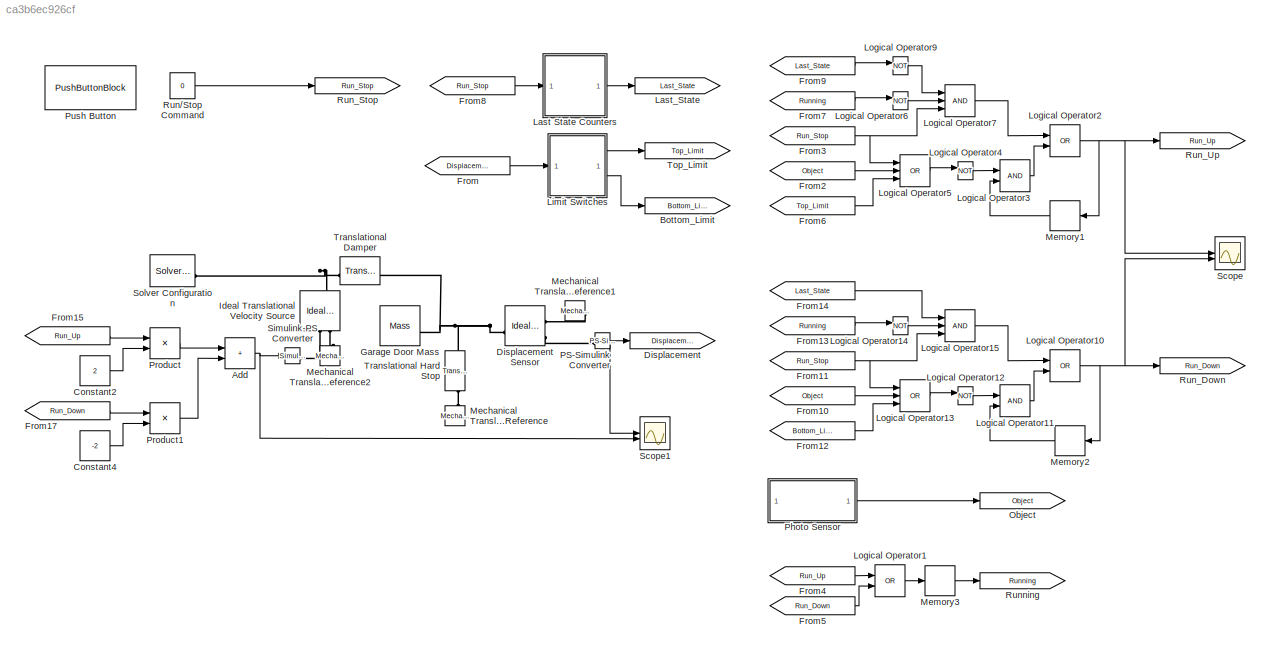
MODEL slx_ca3b6ec926cf
KIND model
CONFIG AbsTol = auto
CONFIG EnableMultiTasking = off
CONFIG FixedStep = auto
CONFIG MaxStep = auto
CONFIG MinStep = auto
CONFIG RelTol = 1e-3
CONFIG SampleTimeConstraint = Unconstrained
CONFIG SolverName = VariableStepAuto
CONFIG StartTime = 0.0
CONFIG StopTime = 10.0
BLOCK [Sum] Add
  IconShape = rectangular
BLOCK [Goto] Bottom_Limit
  GotoTag = Bottom_Limit
BLOCK [Constant] Constant2
  Value = 2
BLOCK [Constant] Constant4
  Value = -2
BLOCK [Goto] Displacement
  GotoTag = Displacement
BLOCK [Reference] Displacement Sensor  REF=fl_lib/Mechanical/Mechanical Sensors/Ideal Translational
Motion Sensor
  SourceBlock = fl_lib/Mechanical/Mechanical Sensors/Ideal Translational\nMotion Sensor
  SourceType = Ideal Translational\nMotion Sensor
BLOCK [From] From
  GotoTag = Displacement
BLOCK [From] From10
  GotoTag = Object
BLOCK [From] From11
  GotoTag = Run_Stop
BLOCK [From] From12
  GotoTag = Bottom_Limit
BLOCK [From] From13
  GotoTag = Running
BLOCK [From] From14
  GotoTag = Last_State
BLOCK [From] From15
  GotoTag = Run_Up
BLOCK [From] From17
  GotoTag = Run_Down
BLOCK [From] From2
  GotoTag = Object
BLOCK [From] From3
  GotoTag = Run_Stop
BLOCK [From] From4
  GotoTag = Run_Up
BLOCK [From] From5
  GotoTag = Run_Down
BLOCK [From] From6
  GotoTag = Top_Limit
BLOCK [From] From7
  GotoTag = Running
BLOCK [From] From8
  GotoTag = Run_Stop
BLOCK [From] From9
  GotoTag = Last_State
BLOCK [Reference] Garage Door Mass  REF=fl_lib/Mechanical/Translational
Elements/Mass
  SourceBlock = fl_lib/Mechanical/Translational\nElements/Mass
  SourceType = Mass
BLOCK [Reference] Ideal Translational Velocity Source  REF=fl_lib/Mechanical/Mechanical Sources/Ideal Translational
Velocity Source
  NameLocation = right
  SourceBlock = fl_lib/Mechanical/Mechanical Sources/Ideal Translational\nVelocity Source
  SourceType = Ideal Translational\nVelocity Source
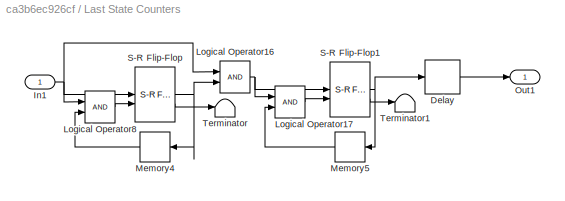
BLOCK [SubSystem] Last State Counters
BLOCK [Delay] Last State Counters/Delay
  DelayLength = 1
  InitialCondition = 0
  InputPortMap = u0
BLOCK [Inport] Last State Counters/In1
BLOCK [Logic] Last State Counters/Logical Operator16
  AllPortsSameDT = off
  IconShape = distinctive
  OutDataTypeStr = boolean
BLOCK [Logic] Last State Counters/Logical Operator17
  AllPortsSameDT = off
  IconShape = distinctive
  OutDataTypeStr = boolean
BLOCK [Logic] Last State Counters/Logical Operator8
  AllPortsSameDT = off
  IconShape = distinctive
  OutDataTypeStr = boolean
BLOCK [Memory] Last State Counters/Memory4
  InheritSampleTime = on
  NameLocation = top
BLOCK [Memory] Last State Counters/Memory5
  InheritSampleTime = on
  NameLocation = top
BLOCK [Outport] Last State Counters/Out1
BLOCK [Reference] Last State Counters/S-R Flip-Flop  REF=simulink_extras/Flip Flops/S-R
Flip-Flop
  SourceBlock = simulink_extras/Flip Flops/S-R\nFlip-Flop
  SourceType = SRFlipFlop
BLOCK [Reference] Last State Counters/S-R Flip-Flop1  REF=simulink_extras/Flip Flops/S-R
Flip-Flop
  SourceBlock = simulink_extras/Flip Flops/S-R\nFlip-Flop
  SourceType = SRFlipFlop
BLOCK [Terminator] Last State Counters/Terminator
BLOCK [Terminator] Last State Counters/Terminator1
BLOCK [Goto] Last_State
  GotoTag = Last_State
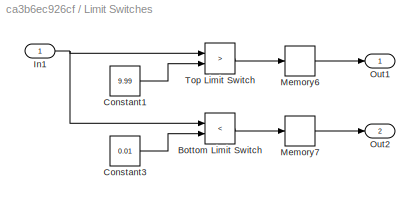
BLOCK [SubSystem] Limit Switches
BLOCK [RelationalOperator] Limit Switches/Bottom Limit Switch
  InputSameDT = off
  Operator = <
  OutDataTypeStr = boolean
  RndMeth = Simplest
BLOCK [Constant] Limit Switches/Constant1
  Value = 9.99
BLOCK [Constant] Limit Switches/Constant3
  Value = 0.01
BLOCK [Inport] Limit Switches/In1
BLOCK [Memory] Limit Switches/Memory6
  InheritSampleTime = on
BLOCK [Memory] Limit Switches/Memory7
  InheritSampleTime = on
BLOCK [Outport] Limit Switches/Out1
BLOCK [Outport] Limit Switches/Out2
  Port = 2
BLOCK [RelationalOperator] Limit Switches/Top Limit Switch
  InputSameDT = off
  Operator = >
  OutDataTypeStr = boolean
  RndMeth = Simplest
BLOCK [Logic] Logical Operator1
  AllPortsSameDT = off
  IconShape = distinctive
  Operator = OR
  OutDataTypeStr = boolean
BLOCK [Logic] Logical Operator10
  AllPortsSameDT = off
  IconShape = distinctive
  Operator = OR
  OutDataTypeStr = boolean
BLOCK [Logic] Logical Operator11
  AllPortsSameDT = off
  IconShape = distinctive
  OutDataTypeStr = boolean
BLOCK [Logic] Logical Operator12
  AllPortsSameDT = off
  IconShape = distinctive
  Operator = NOT
  OutDataTypeStr = boolean
BLOCK [Logic] Logical Operator13
  AllPortsSameDT = off
  IconShape = distinctive
  Inputs = 3
  Operator = OR
  OutDataTypeStr = boolean
BLOCK [Logic] Logical Operator14
  AllPortsSameDT = off
  IconShape = distinctive
  Operator = NOT
  OutDataTypeStr = boolean
BLOCK [Logic] Logical Operator15
  AllPortsSameDT = off
  IconShape = distinctive
  Inputs = 3
  OutDataTypeStr = boolean
BLOCK [Logic] Logical Operator2
  AllPortsSameDT = off
  IconShape = distinctive
  Operator = OR
  OutDataTypeStr = boolean
BLOCK [Logic] Logical Operator3
  AllPortsSameDT = off
  IconShape = distinctive
  OutDataTypeStr = boolean
BLOCK [Logic] Logical Operator4
  AllPortsSameDT = off
  IconShape = distinctive
  Operator = NOT
  OutDataTypeStr = boolean
BLOCK [Logic] Logical Operator5
  AllPortsSameDT = off
  IconShape = distinctive
  Inputs = 3
  Operator = OR
  OutDataTypeStr = boolean
BLOCK [Logic] Logical Operator6
  AllPortsSameDT = off
  IconShape = distinctive
  Operator = NOT
  OutDataTypeStr = boolean
BLOCK [Logic] Logical Operator7
  AllPortsSameDT = off
  IconShape = distinctive
  Inputs = 3
  OutDataTypeStr = boolean
BLOCK [Logic] Logical Operator9
  AllPortsSameDT = off
  IconShape = distinctive
  Operator = NOT
  OutDataTypeStr = boolean
BLOCK [Reference] Mechanical Translational Reference  REF=fl_lib/Mechanical/Translational
Elements/Mechanical
Translational
Reference
  NameLocation = right
  SourceBlock = fl_lib/Mechanical/Translational\nElements/Mechanical\nTranslational\nReference
  SourceType = Mechanical\nTranslational\nReference
BLOCK [Reference] Mechanical Translational Reference1  REF=fl_lib/Mechanical/Translational
Elements/Mechanical
Translational
Reference
  NameLocation = top
  SourceBlock = fl_lib/Mechanical/Translational\nElements/Mechanical\nTranslational\nReference
  SourceType = Mechanical\nTranslational\nReference
BLOCK [Reference] Mechanical Translational Reference2  REF=fl_lib/Mechanical/Translational
Elements/Mechanical
Translational
Reference
  NameLocation = right
  SourceBlock = fl_lib/Mechanical/Translational\nElements/Mechanical\nTranslational\nReference
  SourceType = Mechanical\nTranslational\nReference
BLOCK [Memory] Memory1
  NameLocation = top
BLOCK [Memory] Memory2
  NameLocation = top
BLOCK [Memory] Memory3
  InheritSampleTime = on
BLOCK [Goto] Object
  GotoTag = Object
BLOCK [Reference] PS-Simulink Converter  REF=nesl_utility/PS-Simulink
Converter
  SourceBlock = nesl_utility/PS-Simulink\nConverter
  SourceType = PS-Simulink\nConverter
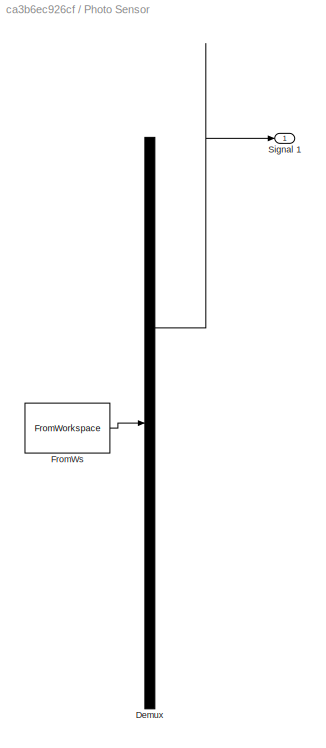
BLOCK [SubSystem] Photo Sensor
  ClipboardFcn = sigbuilder_block('clipboard');
  CloseFcn = sigbuilder_block('close');
  ContinueFcn = sigbuilder_block('continue');
  CopyFcn = sigbuilder_block('copy');
  DeleteFcn = sigbuilder_block('delete');
  LoadFcn = sigbuilder_block('load');
  MaskHideContents = on
  ModelCloseFcn = sigbuilder_block('modelClose');
  NameChangeFcn = sigbuilder_block('namechange');
  OpenFcn = sigbuilder_block('open',[0 36 1152 558 ]);
  PauseFcn = sigbuilder_block('pause');
  PreSaveFcn = sigbuilder_block('preSave');
  StartFcn = sigbuilder_block('start');
  StopFcn = sigbuilder_block('stop');
  Tag = STV Subsys
BLOCK [Demux] Photo Sensor/Demux
  DisplayOption = none
  Outputs = 1
  Tag = STV Demux
BLOCK [FromWorkspace] Photo Sensor/FromWs
  Tag = STV FromWs
  VariableName = tuvar
BLOCK [Outport] Photo Sensor/Signal 1
  Tag = STV Outport
BLOCK [Product] Product
BLOCK [Product] Product1
BLOCK [PushButtonBlock] Push Button
  ButtonText = Push Button
  IconOffColor = [0.0, 1.0, 0.0]
  IconOnColor = [0.0, 0.39215686274509803, 0.0]
  OffValue = 0.000000
BLOCK [Constant] Run//Stop Command
  OutDataTypeStr = boolean
  Value = 0
BLOCK [Goto] Run_Down
  GotoTag = Run_Down
BLOCK [Goto] Run_Stop
  GotoTag = Run_Stop
BLOCK [Goto] Run_Up
  GotoTag = Run_Up
BLOCK [Goto] Running
  GotoTag = Running
BLOCK [Scope] Scope
  ActiveDisplayYMaximum = 1.125
  ActiveDisplayYMinimum = -0.12499999999999997
  Floating = off
  GraphicalSettings = {"Style":{"BackgroundColor":[0.12941176470588237,0.12941176470588237,0.12941176470588237],"AxesColor":[0.07058823529411765,0.07058823529411765,0.07058823529411765],"LabelsColor":[0.8509803921568627,0.8509803921568627,0.8509803921568627],"PreserveColors":false,"Visible":[true,true],"LineStyle":["-","-"],"LineWidth":[1.5,1.5],"BarWidth":[0.9,0.9],"LineColor":["auto","auto"],"LineFaceAlpha":[1,1],"Li...<+2323ch>
  LayoutDimensionsString = [2 1]
  MultipleDisplayCache = [{"MaxYLimMag":1.125,"MaxYLimReal":1.125,"MinYLimMag":0,"MinYLimReal":-0.12499999999999997,"PlotAsMagnitudePhase":false,"ShowGrid":true,"ShowLegend":false,"Title":"%<SignalLabel>","YLabel":""},{"MaxYLimMag":1.125,"MaxYLimReal":1.125,"MinYLimMag":0,"MinYLimReal":-0.12499999999999997,"PlotAsMagnitudePhase":false,"ShowGrid":true,"ShowLegend":false,"Title":"%<SignalLabel>","YLabel":""}]
  NumInputPorts = 2
  ScopeFrameLocation = window
  Visible = on
  WasSavedAsWebScope = on
  WindowPosition = [928.000000,220.000000,560.000000,420.000000,]
BLOCK [Scope] Scope1
  ActiveDisplayYMaximum = 11.26772
  ActiveDisplayYMinimum = -1.25197
  DataLoggingVariableName = ScopeData1
  Floating = off
  GraphicalSettings = {"GraphicalSettings":{"LegacySettings":true,"Style":{"AxesScalingProperties":{"ScaleAxesLimitsAtStop":false},"Style":{"AxesColor":"[0 0 0]","ChannelNames":["",""],"ColorOrder":"[1 1 0.0666666666666667;0.0745098039215686 0.623529411764706 1;1 0.411764705882353 0.16078431372549;0.392156862745098 0.831372549019608 0.0745098039215686;0.717647058823529 0.274509803921569 1;0.0588235294117647 1 1;1 0.074...<+607ch>
  LayoutDimensionsString = [2 1]
  MultipleDisplayCache = [{"MaxYLimMag":11.26772,"MaxYLimReal":11.26772,"MinYLimMag":0,"MinYLimReal":-1.25197,"PlotAsMagnitudePhase":false,"ShowGrid":true,"ShowLegend":false,"Title":"%<SignalLabel>","YLabel":""},{"MaxYLimMag":10,"MaxYLimReal":2.5,"MinYLimMag":0,"MinYLimReal":-2.5,"PlotAsMagnitudePhase":false,"ShowGrid":true,"ShowLegend":false,"Title":"%<SignalLabel>","YLabel":""}]
  NumInputPorts = 2
  ScopeFrameLocation = window
  WasSavedAsWebScope = on
BLOCK [Reference] Simulink-PS Converter  REF=nesl_utility/Simulink-PS
Converter
  SourceBlock = nesl_utility/Simulink-PS\nConverter
  SourceType = Simulink-PS\nConverter
BLOCK [Reference] Solver Configuration  REF=nesl_utility/Solver
Configuration
  SourceBlock = nesl_utility/Solver\nConfiguration
  SourceType = Solver\nConfiguration
BLOCK [Goto] Top_Limit
  GotoTag = Top_Limit
BLOCK [Reference] Translational Damper  REF=fl_lib/Mechanical/Translational
Elements/Translational Damper
  SourceBlock = fl_lib/Mechanical/Translational\nElements/Translational Damper
  SourceType = Translational Damper
BLOCK [Reference] Translational Hard Stop  REF=fl_lib/Mechanical/Translational
Elements/Translational Hard
Stop
  NameLocation = left
  SourceBlock = fl_lib/Mechanical/Translational\nElements/Translational Hard\nStop
  SourceType = Translational Hard\nStop
NET Add:1 -> Scope1:2, Simulink-PS Converter:1
LINE Constant2:1 -> Product:2
LINE Constant4:1 -> Product1:2
LINE From10:1 -> Logical Operator13:2
NET From11:1 -> Logical Operator13:1, Logical Operator15:3
LINE From12:1 -> Logical Operator13:3
LINE From13:1 -> Logical Operator14:1
LINE From14:1 -> Logical Operator15:1
LINE From15:1 -> Product:1
LINE From17:1 -> Product1:1
LINE From2:1 -> Logical Operator5:2
NET From3:1 -> Logical Operator5:1, Logical Operator7:3
LINE From4:1 -> Logical Operator1:1
LINE From5:1 -> Logical Operator1:2
LINE From6:1 -> Logical Operator5:3
LINE From7:1 -> Logical Operator6:1
LINE From8:1 -> Last State Counters:1
LINE From9:1 -> Logical Operator9:1
LINE From:1 -> Limit Switches:1
LINE Last State Counters/Delay:1 -> Last State Counters/Out1:1
NET Last State Counters/In1:1 -> Last State Counters/Logical Operator16:1, Last State Counters/Logical Operator8:1, Last State Counters/S-R Flip-Flop:1
NET Last State Counters/Logical Operator16:1 -> Last State Counters/Logical Operator17:1, Last State Counters/S-R Flip-Flop1:1
LINE Last State Counters/Logical Operator17:1 -> Last State Counters/S-R Flip-Flop1:2
LINE Last State Counters/Logical Operator8:1 -> Last State Counters/S-R Flip-Flop:2
LINE Last State Counters/Memory4:1 -> Last State Counters/Logical Operator8:2
LINE Last State Counters/Memory5:1 -> Last State Counters/Logical Operator17:2
NET Last State Counters/S-R Flip-Flop1:1 -> Last State Counters/Delay:1, Last State Counters/Memory5:1
LINE Last State Counters/S-R Flip-Flop1:2 -> Last State Counters/Terminator1:1
NET Last State Counters/S-R Flip-Flop:1 -> Last State Counters/Logical Operator16:2, Last State Counters/Memory4:1
LINE Last State Counters/S-R Flip-Flop:2 -> Last State Counters/Terminator:1
LINE Last State Counters:1 -> Last_State:1
LINE Limit Switches/Bottom Limit Switch:1 -> Limit Switches/Memory7:1
LINE Limit Switches/Constant1:1 -> Limit Switches/Top Limit Switch:2
LINE Limit Switches/Constant3:1 -> Limit Switches/Bottom Limit Switch:2
NET Limit Switches/In1:1 -> Limit Switches/Bottom Limit Switch:1, Limit Switches/Top Limit Switch:1
LINE Limit Switches/Memory6:1 -> Limit Switches/Out1:1
LINE Limit Switches/Memory7:1 -> Limit Switches/Out2:1
LINE Limit Switches/Top Limit Switch:1 -> Limit Switches/Memory6:1
LINE Limit Switches:1 -> Top_Limit:1
LINE Limit Switches:2 -> Bottom_Limit:1
NET Logical Operator10:1 -> Memory2:1, Run_Down:1, Scope:2
LINE Logical Operator11:1 -> Logical Operator10:2
LINE Logical Operator12:1 -> Logical Operator11:1
LINE Logical Operator13:1 -> Logical Operator12:1
LINE Logical Operator14:1 -> Logical Operator15:2
LINE Logical Operator15:1 -> Logical Operator10:1
LINE Logical Operator1:1 -> Memory3:1
NET Logical Operator2:1 -> Memory1:1, Run_Up:1, Scope:1
LINE Logical Operator3:1 -> Logical Operator2:2
LINE Logical Operator4:1 -> Logical Operator3:1
LINE Logical Operator5:1 -> Logical Operator4:1
LINE Logical Operator6:1 -> Logical Operator7:2
LINE Logical Operator7:1 -> Logical Operator2:1
LINE Logical Operator9:1 -> Logical Operator7:1
LINE Memory1:1 -> Logical Operator3:2
LINE Memory2:1 -> Logical Operator11:2
LINE Memory3:1 -> Running:1
NET PS-Simulink Converter:1 -> Displacement:1, Scope1:1
LINE Photo Sensor:1 -> Object:1
LINE Product1:1 -> Add:2
LINE Product:1 -> Add:1
LINE Run//Stop Command:1 -> Run_Stop:1
PNET net1: Displacement Sensor:LConn1 -- Garage Door Mass:LConn1 -- Translational Damper:RConn1 -- Translational Hard Stop:LConn1
PLINE Displacement Sensor:RConn1 -- Mechanical Translational Reference1:LConn1
PLINE Displacement Sensor:RConn3 -- PS-Simulink Converter:LConn1
PNET net2: Ideal Translational Velocity Source:LConn1 -- Solver Configuration:RConn1 -- Translational Damper:LConn1
PLINE Ideal Translational Velocity Source:RConn1 -- Simulink-PS Converter:RConn1
PLINE Ideal Translational Velocity Source:RConn2 -- Mechanical Translational Reference2:LConn1
PLINE Mechanical Translational Reference:LConn1 -- Translational Hard Stop:RConn1
note: NET lines group one-source signal fan-out (src -> all destinations, sorted); 1:1 wires keep LINE; PNET lines group multi-terminal physical nets as a canonical sorted terminal list (undirected conserving connections); 2-terminal nets keep the pairwise PLINE form
